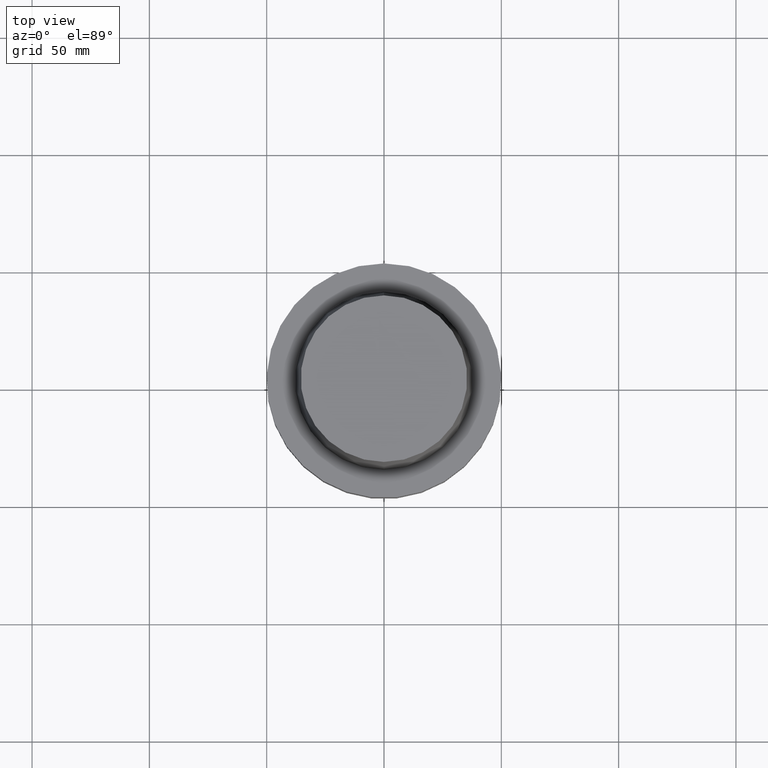
[diagram: clean part render]
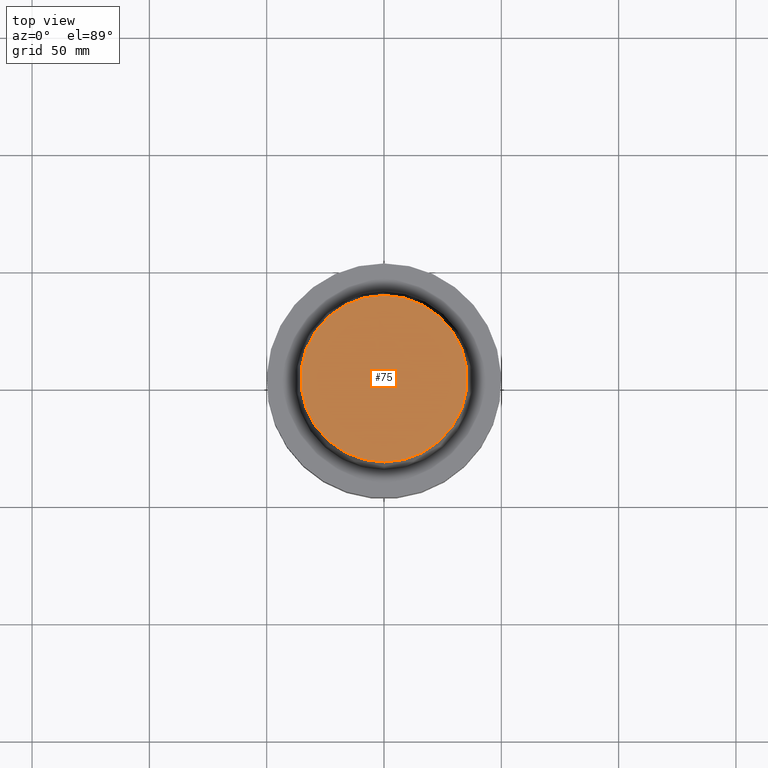
[diagram: same view with one face highlighted and labeled with its STEP entity id]
A machine part, top view. The second image highlights one B-rep face of the part: STEP entity #75.
In plain terms, the highlighted planar face has unit normal (-0, -0, 1).
Its self-contained STEP definition (entity closure, byte-faithful):
#75=ADVANCED_FACE('',(#93),#94,.T.);
#93=FACE_OUTER_BOUND('',#142,.T.);
#94=PLANE('',#143);
#142=EDGE_LOOP('',(#191));
#143=AXIS2_PLACEMENT_3D('',#192,#193,#194);
#191=ORIENTED_EDGE('',*,*,#274,.F.);
#192=CARTESIAN_POINT('',(-3.06161699786838E-015,17.7500000007809,50.0));
#193=DIRECTION('',(-6.12323399573677E-017,-1.22464679914735E-016,1.0));
#194=DIRECTION('',(1.23259516440783E-032,-1.0,-1.22464679914735E-016));
#274=EDGE_CURVE('',#290,#290,#291,.T.);
#290=VERTEX_POINT('',#322);
#291=CIRCLE('',#323,35.5000000015618);
#322=CARTESIAN_POINT('',(-3.06161699786838E-015,35.5000000015618,50.0));
#323=AXIS2_PLACEMENT_3D('',#354,#355,#356);
#354=CARTESIAN_POINT('',(-3.06161699786838E-015,-6.12323399573676E-015,50.0));
#355=DIRECTION('',(6.12323399573677E-017,1.22464679914735E-016,-1.0));
#356=DIRECTION('',(-1.23259516440783E-032,1.0,1.22464679914735E-016));